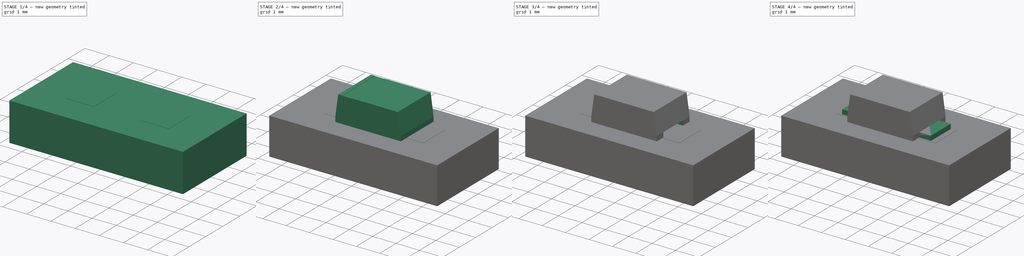
[diagram: build sequence overview — one tinted view per stage of 4, left to right]
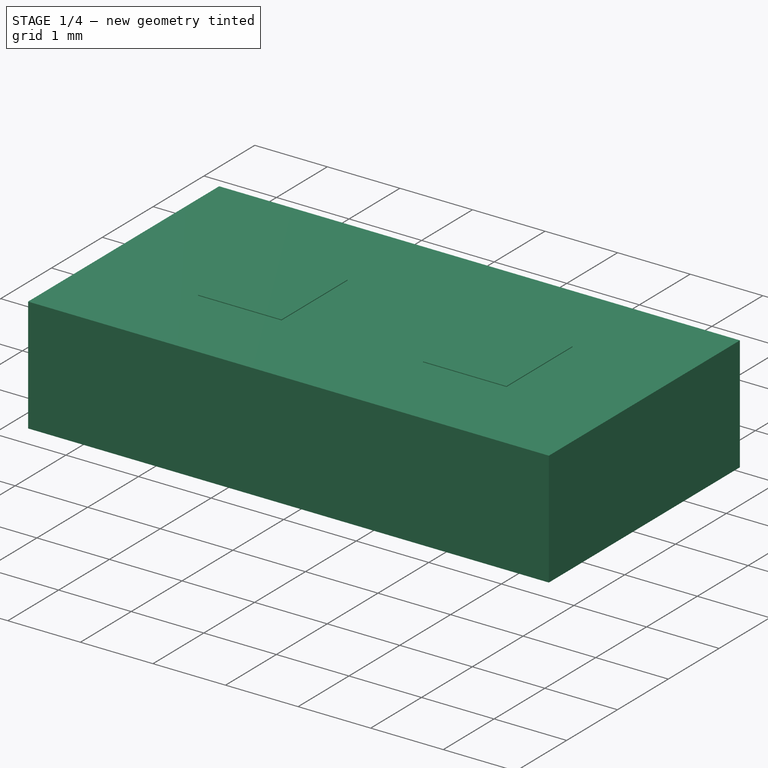
[diagram: stage 1 of 4 — iso view after this stage's code; geometry added in this stage tinted green]
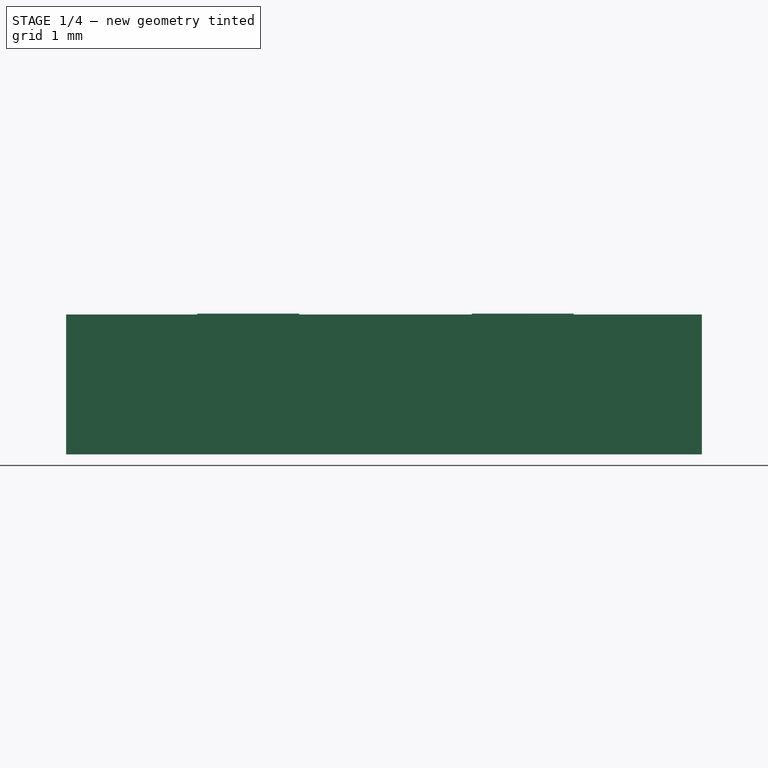
[diagram: stage 1 of 4 — front view after this stage's code; geometry added in this stage tinted green]
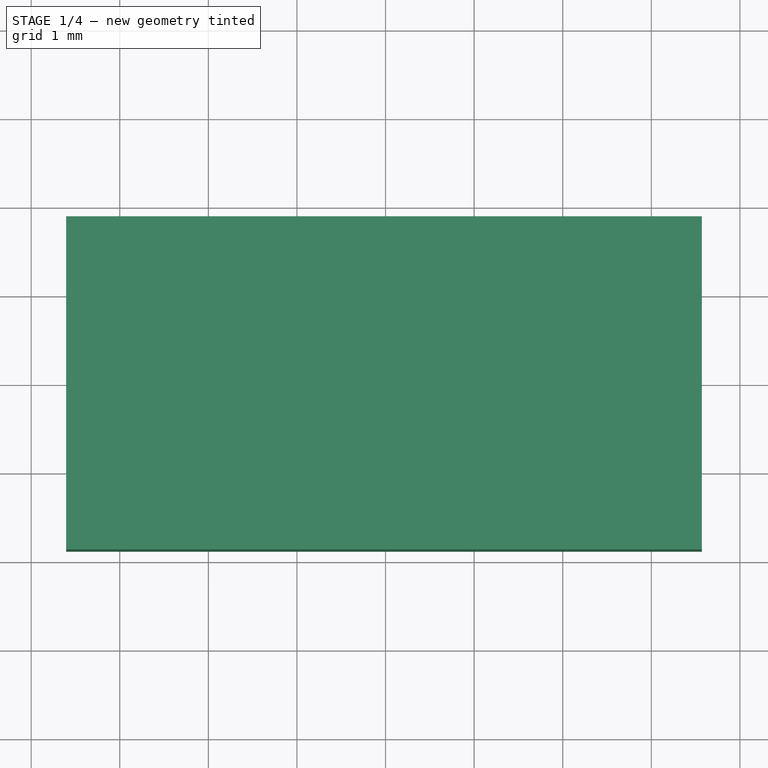
[diagram: stage 1 of 4 — top view after this stage's code; geometry added in this stage tinted green]
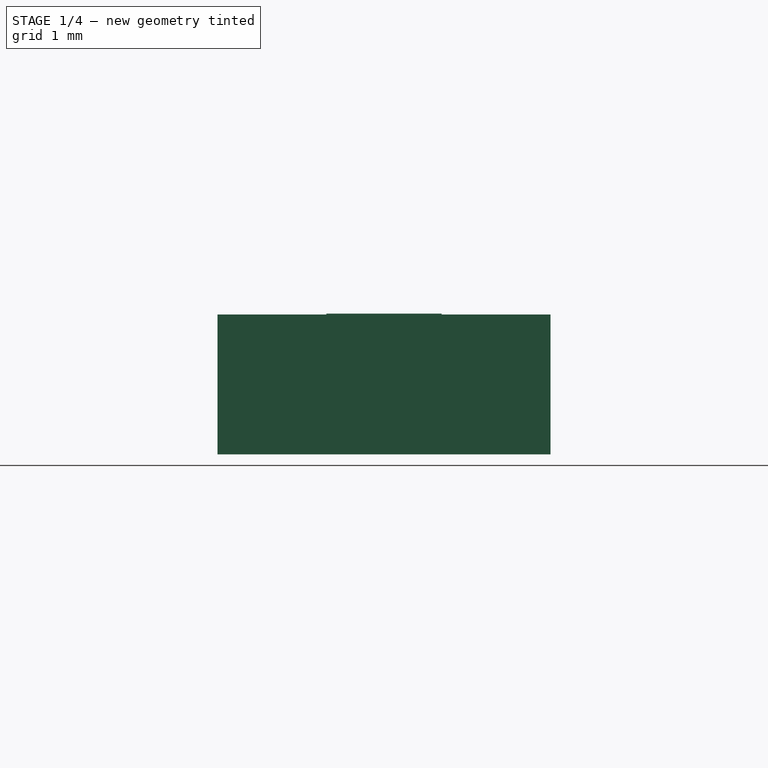
[diagram: stage 1 of 4 — right view after this stage's code; geometry added in this stage tinted green]
FCSTD DOCUMENT  (FreeCAD 0.17R13522 (Git))
Label: SMC_DSS16UTR
License: All rights reserved
LicenseURL: http://en.wikipedia.org/wiki/All_rights_reserved
objects: Sketcher::SketchObject×6, Part::FeaturePython×5, PartDesign::Pad×4, PartDesign::Body×4, PartDesign::Pocket×2, PartDesign::Plane×1, PartDesign::Mirrored×1, App::DocumentObjectGroup×1, Part::Feature×1
note: 30 computed .brp shape members not serialized (recipe doc carries the construction recipe); baked Part::Feature solids carry a one-line shape summary decoded from their .brp

FEATURE [PartDesign::Body] Body
  Group = -> [Sketch,Pad,Sketch003,Pocket,Sketch005,Pocket001,Mirrored]
  Origin = -> Origin
  Tip = -> Mirrored
FEATURE [Part::FeaturePython] FCrtYd_lines  label="FCrtYd"  # a2plus imported part (geometry in sourceFile) (typed FeaturePython)
  fixedPosition = true
FEATURE [Part::FeaturePython] FFab_lines  label="FFab"  # a2plus imported part (geometry in sourceFile) (typed FeaturePython)
  fixedPosition = true
FEATURE [Part::FeaturePython] Filk_lines  label="FrontSilk"  # a2plus imported part (geometry in sourceFile) (typed FeaturePython)
  fixedPosition = true
FEATURE [Part::FeaturePython] TopPads  # a2plus imported part (geometry in sourceFile) (typed FeaturePython)
  fixedPosition = true
FEATURE [Part::FeaturePython] newPCB  label="Pcb"  # a2plus imported part (geometry in sourceFile) (typed FeaturePython)
  fixedPosition = true
FEATURE [App::DocumentObjectGroup] D_SOD_123FL_fp
  Group = -> [FCrtYd_lines,FFab_lines,Filk_lines,TopPads,newPCB]
FEATURE [Part::Feature] Shape001  label="SMC_DSS16UTR"
  shape: bbox 3.8 x 2 x 1.1 mm, 18 faces (baked)
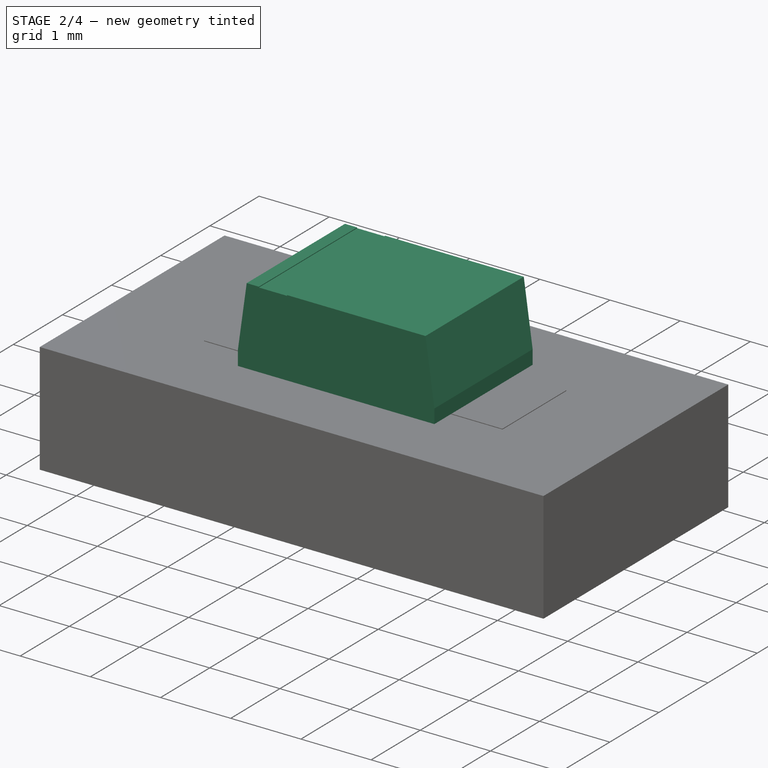
[diagram: stage 2 of 4 — iso view after this stage's code; geometry added in this stage tinted green]
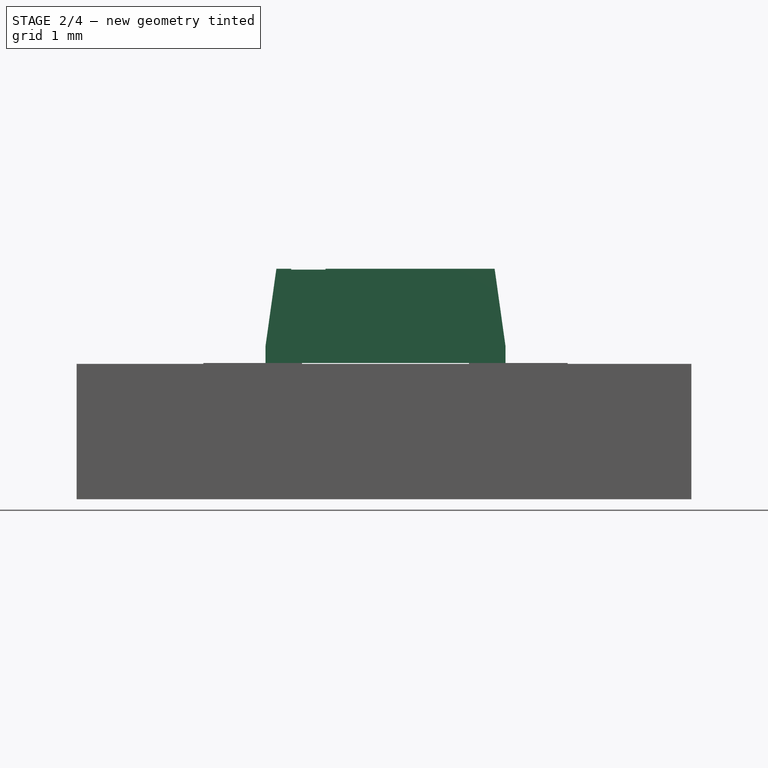
[diagram: stage 2 of 4 — front view after this stage's code; geometry added in this stage tinted green]
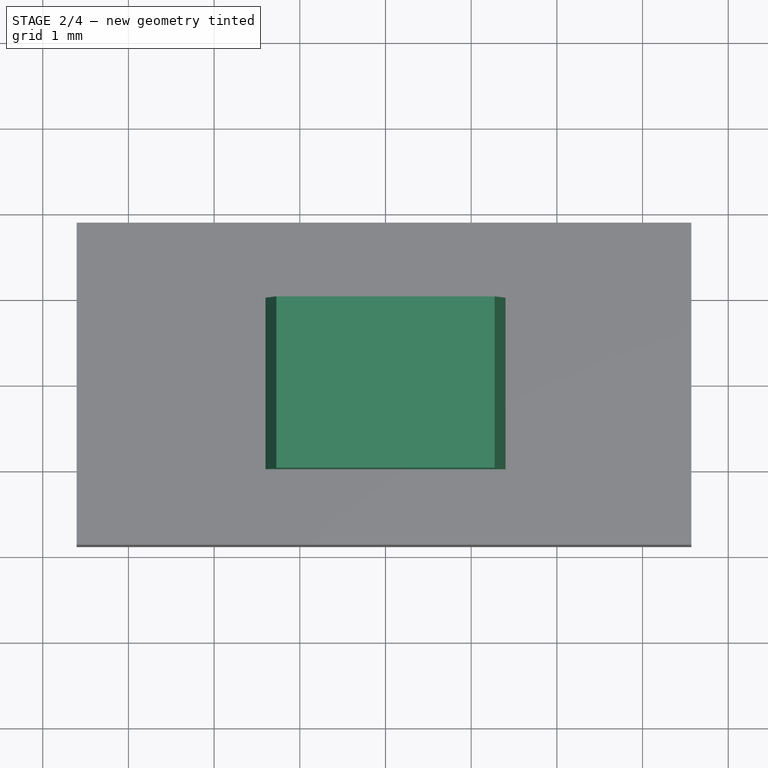
[diagram: stage 2 of 4 — top view after this stage's code; geometry added in this stage tinted green]
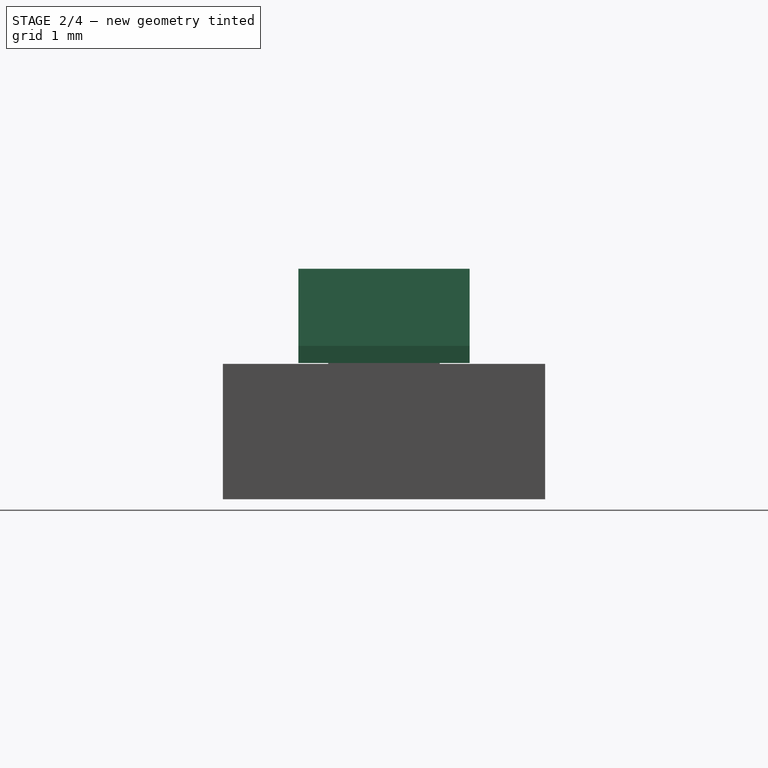
[diagram: stage 2 of 4 — right view after this stage's code; geometry added in this stage tinted green]
FEATURE [Sketcher::SketchObject] Sketch
  MapMode = 5
  Placement = pos=(0,0,0) rot=(1,0,0;1.5708rad)
  Support = -> [XZ_Plane]
  sketch-geometry (10):
    g0: LineSegment StartX=-1.4 StartY=0 StartZ=0 EndX=1.4 EndY=0 EndZ=0
    g1: LineSegment StartX=1.27351 StartY=1.1 StartZ=0 EndX=-1.27351 EndY=1.1 EndZ=0
    g2: LineSegment [constr] StartX=-1.4 StartY=0 StartZ=0 EndX=-1.4 EndY=1.1 EndZ=0
    g3: LineSegment [constr] StartX=-1.4 StartY=1.1 StartZ=0 EndX=-1.27351 EndY=1.1 EndZ=0
    g4: LineSegment [constr] StartX=1.27351 StartY=1.1 StartZ=0 EndX=1.4 EndY=1.1 EndZ=0
    g5: LineSegment [constr] StartX=1.4 StartY=1.1 StartZ=0 EndX=1.4 EndY=0 EndZ=0
    g6: LineSegment StartX=-1.27351 StartY=1.1 StartZ=0 EndX=-1.4 EndY=0.2 EndZ=0
    g7: LineSegment StartX=-1.4 StartY=0.2 StartZ=0 EndX=-1.4 EndY=0 EndZ=0
    g8: LineSegment StartX=1.27351 StartY=1.1 StartZ=0 EndX=1.4 EndY=0.2 EndZ=0
    g9: LineSegment StartX=1.4 StartY=0.2 StartZ=0 EndX=1.4 EndY=0 EndZ=0
  constraints (28):
    c: PointOnObject(g0,g-1)
    c: Horizontal(g0)
    c: Horizontal(g1)
    c: DistanceX(g0,g0) = 2.8
    c: Symmetric(g0,g0,g-2)
    c: Symmetric(g1,g1,g-2)
    c: Coincident(g2,g0)
    c: Vertical(g2)
    c: Coincident(g3,g2)
    c: Coincident(g3,g1)
    c: Horizontal(g4)
    c: Coincident(g5,g4)
    c: Coincident(g5,g0)
    c: Vertical(g5)
    c: Horizontal(g3)
    c: DistanceY(g5,g5) = 1.1
    c: Coincident(g6,g1)
    c: PointOnObject(g6,g2)
    c: Coincident(g7,g6)
    c: Coincident(g7,g0)
    c: Coincident(g8,g1)
    c: Coincident(g9,g8)
    c: Coincident(g9,g0)
    c: PointOnObject(g8,g5)
    c: DistanceY(g7,g7) = 0.2
    c: Equal(g7,g9)
    c: Angle(g5,g8) = 0.139626
    c: Coincident(g1,g4)
FEATURE [PartDesign::Pad] Pad
  Length = 2
  Length2 = 100
  Midplane = true
  Placement = pos=(0,0,0) rot=(1,0,0;1.5708rad)
  Profile = -> Sketch
  Refine = true
  Type = 0
FEATURE [PartDesign::Body] Body002  label="pin1"
  Group = -> [Sketch002,Pad002]
  Origin = -> Origin002
  Tip = -> Pad002
FEATURE [PartDesign::Plane] DatumPlane
  AttachmentOffset = pos=(0,0,1.1) rot=(0,0,1;0rad)
  MapMode = 2
  Placement = pos=(0,0,1.1) rot=(0,0,1;0rad)
  Support = -> [XY_Plane003]
FEATURE [Sketcher::SketchObject] Sketch003
  ExternalGeometry = -> [Pad]
  MapMode = 5
  Placement = pos=(0,0,1.1) rot=(0,0,1;3.14159rad)
  Support = -> [Pad]
  sketch-geometry (4):
    g0: LineSegment StartX=0.7 StartY=1 StartZ=0 EndX=1.1 EndY=1 EndZ=0
    g1: LineSegment StartX=1.1 StartY=1 StartZ=0 EndX=1.1 EndY=-1 EndZ=0
    g2: LineSegment StartX=1.1 StartY=-1 StartZ=0 EndX=0.7 EndY=-1 EndZ=0
    g3: LineSegment StartX=0.7 StartY=-1 StartZ=0 EndX=0.7 EndY=1 EndZ=0
  constraints (12):
    c: Coincident(g0,g1)
    c: Coincident(g1,g2)
    c: Coincident(g2,g3)
    c: Coincident(g3,g0)
    c: Horizontal(g0)
    c: Horizontal(g2)
    c: Vertical(g1)
    c: Vertical(g3)
    c: PointOnObject(g0,g-3)
    c: PointOnObject(g1,g-4)
    c: DistanceX(g0,g0) = 0.4
    c: DistanceX(g0,g-6) = 0.3
FEATURE [PartDesign::Pocket] Pocket
  BaseFeature = -> Pad
  Length = 0.01
  Length2 = 100
  Placement = pos=(0,0,0) rot=(1,0,0;1.5708rad)
  Profile = -> Sketch003
  Refine = true
  Type = 0
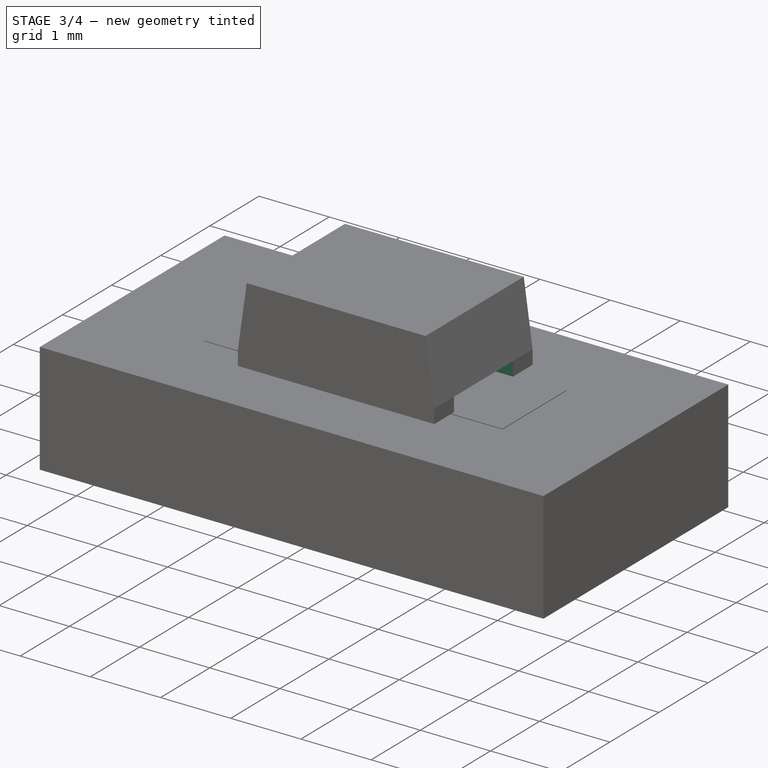
[diagram: stage 3 of 4 — iso view after this stage's code; geometry added in this stage tinted green]
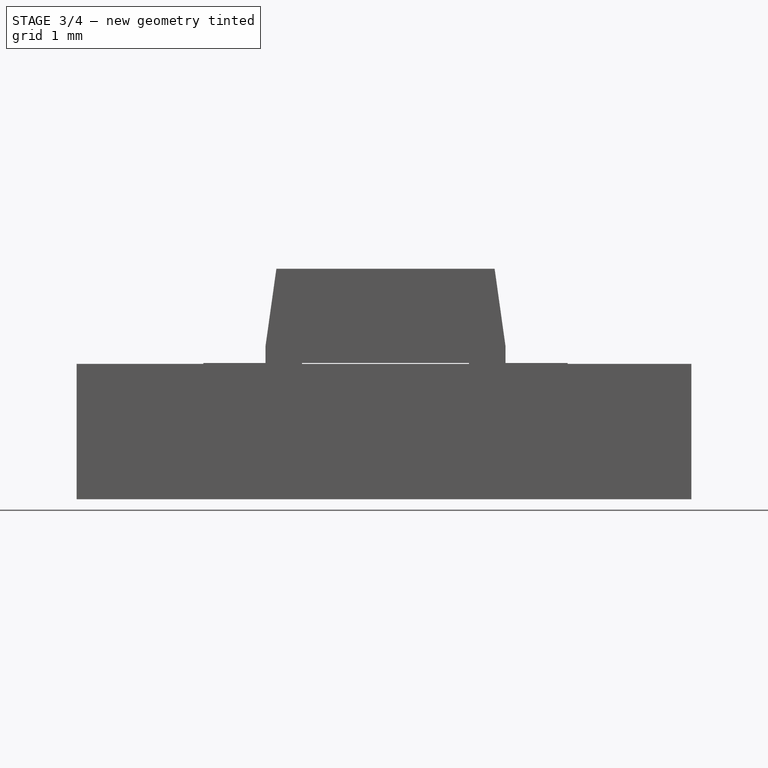
[diagram: stage 3 of 4 — front view after this stage's code; geometry added in this stage tinted green]
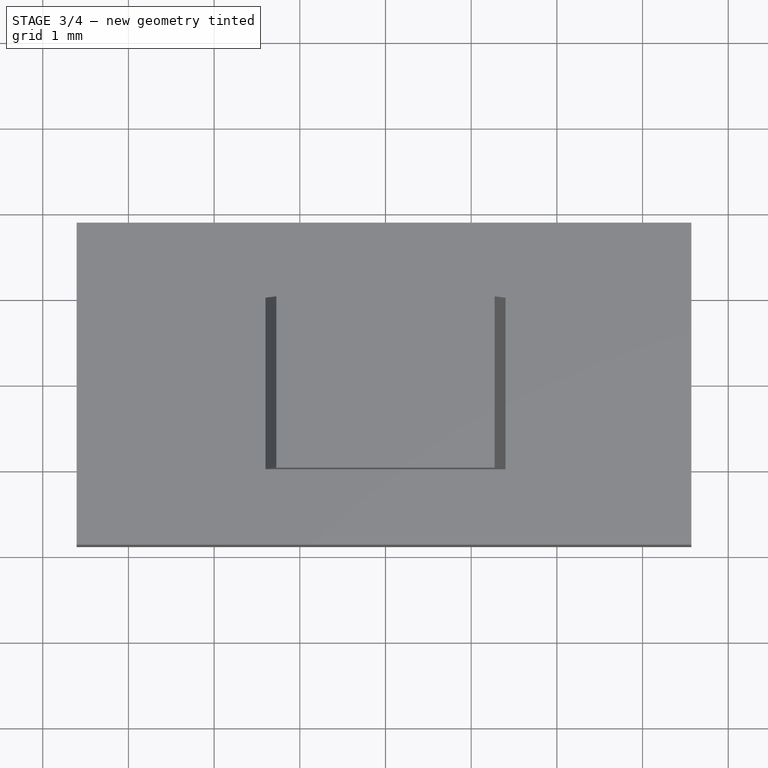
[diagram: stage 3 of 4 — top view after this stage's code; geometry added in this stage tinted green]
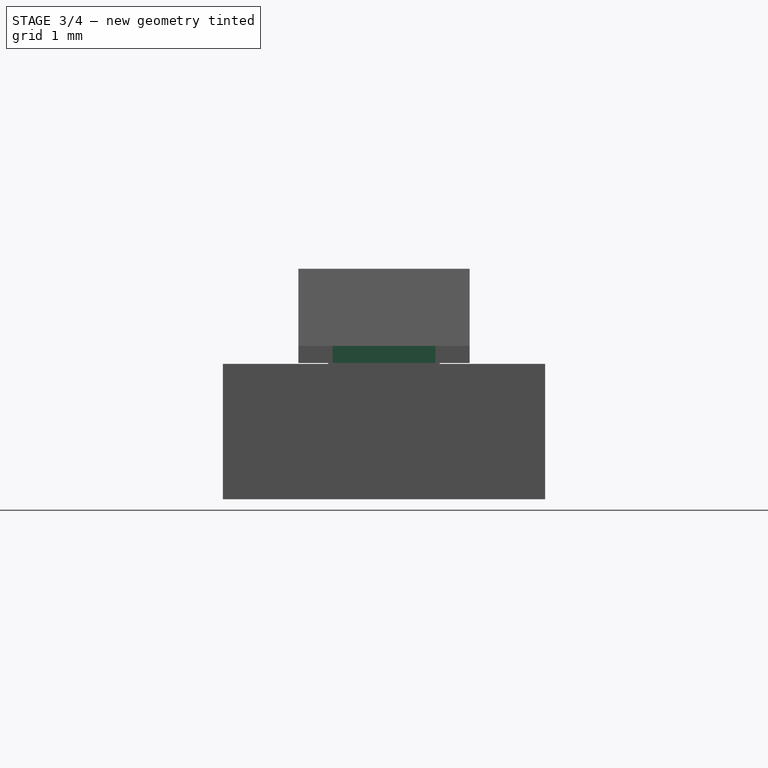
[diagram: stage 3 of 4 — right view after this stage's code; geometry added in this stage tinted green]
FEATURE [Sketcher::SketchObject] Sketch004
  MapMode = 5
  Placement = pos=(0,0,1.1) rot=(0,0,1;0rad)
  Support = -> [DatumPlane]
  expr: Constraints[13] = 2.7999999999999998 / 2
  sketch-geometry (5):
    g0: LineSegment StartX=-1.1 StartY=1 StartZ=0 EndX=-0.7 EndY=1 EndZ=0
    g1: LineSegment StartX=-0.7 StartY=1 StartZ=0 EndX=-0.7 EndY=-1 EndZ=0
    g2: LineSegment StartX=-0.7 StartY=-1 StartZ=0 EndX=-1.1 EndY=-1 EndZ=0
    g3: LineSegment StartX=-1.1 StartY=-1 StartZ=0 EndX=-1.1 EndY=1 EndZ=0
    g4: LineSegment [constr] StartX=0 StartY=0 StartZ=0 EndX=-1.4 EndY=0 EndZ=0
  constraints (15):
    c: Coincident(g0,g1)
    c: Coincident(g1,g2)
    c: Coincident(g2,g3)
    c: Coincident(g3,g0)
    c: Horizontal(g0)
    c: Horizontal(g2)
    c: Vertical(g1)
    c: Vertical(g3)
    c: Symmetric(g0,g1,g-1)
    c: DistanceY(g1,g1) = 2
    c: DistanceX(g0,g0) = 0.4
    c: Coincident(g4,g-1)
    c: PointOnObject(g4,g-1)
    c: DistanceX(g4,g4) = 1.4
    c: DistanceX(g4,g0) = 0.3
FEATURE [PartDesign::Pad] Pad003
  Length = 0.01
  Length2 = 100
  Placement = pos=(0,0,1.1) rot=(0,0,1;0rad)
  Profile = -> Sketch004
  Refine = true
  Reversed = true
  Type = 0
FEATURE [PartDesign::Body] Body003  label="polarity"
  Group = -> [DatumPlane,Sketch004,Pad003]
  Origin = -> Origin003
  Tip = -> Pad003
FEATURE [Sketcher::SketchObject] Sketch005
  MapMode = 5
  Placement = pos=(0,0,0) rot=(1,0,0;3.14159rad)
  Support = -> [Pocket]
  sketch-geometry (4):
    g0: LineSegment StartX=1.9 StartY=0.6 StartZ=0 EndX=0.95 EndY=0.6 EndZ=0
    g1: LineSegment StartX=0.95 StartY=0.6 StartZ=0 EndX=0.95 EndY=-0.6 EndZ=0
    g2: LineSegment StartX=0.95 StartY=-0.6 StartZ=0 EndX=1.9 EndY=-0.6 EndZ=0
    g3: LineSegment StartX=1.9 StartY=-0.6 StartZ=0 EndX=1.9 EndY=0.6 EndZ=0
  constraints (12):
    c: Coincident(g0,g1)
    c: Coincident(g1,g2)
    c: Coincident(g2,g3)
    c: Coincident(g3,g0)
    c: Horizontal(g0)
    c: Horizontal(g2)
    c: Vertical(g1)
    c: Vertical(g3)
    c: DistanceX(g0,g0) = 0.95
    c: DistanceY(g3,g3) = 1.2
    c: Symmetric(g0,g2,g-1)
    c: DistanceX(g-1,g0) = 1.9
FEATURE [PartDesign::Pocket] Pocket001
  BaseFeature = -> Pocket
  Length = 0.2
  Length2 = 100
  Placement = pos=(0,0,0) rot=(1,0,0;1.5708rad)
  Profile = -> Sketch005
  Refine = true
  Type = 0
FEATURE [PartDesign::Mirrored] Mirrored
  BaseFeature = -> Pocket001
  MirrorPlane = -> YZ_Plane
  Originals = -> [Pocket001]
  Placement = pos=(0,0,0) rot=(1,0,0;1.5708rad)
  Refine = true
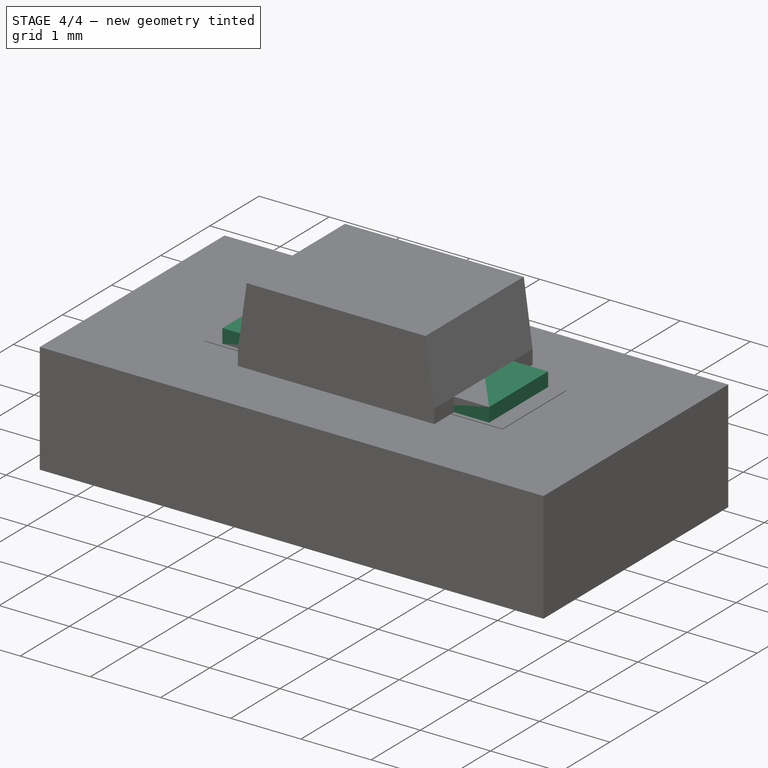
[diagram: stage 4 of 4 — iso view after this stage's code; geometry added in this stage tinted green]
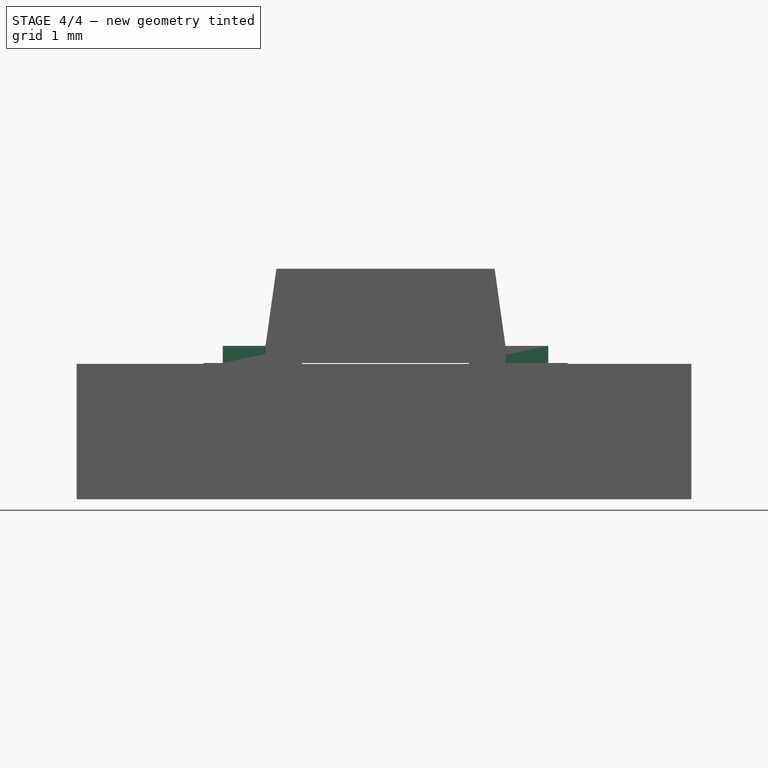
[diagram: stage 4 of 4 — front view after this stage's code; geometry added in this stage tinted green]
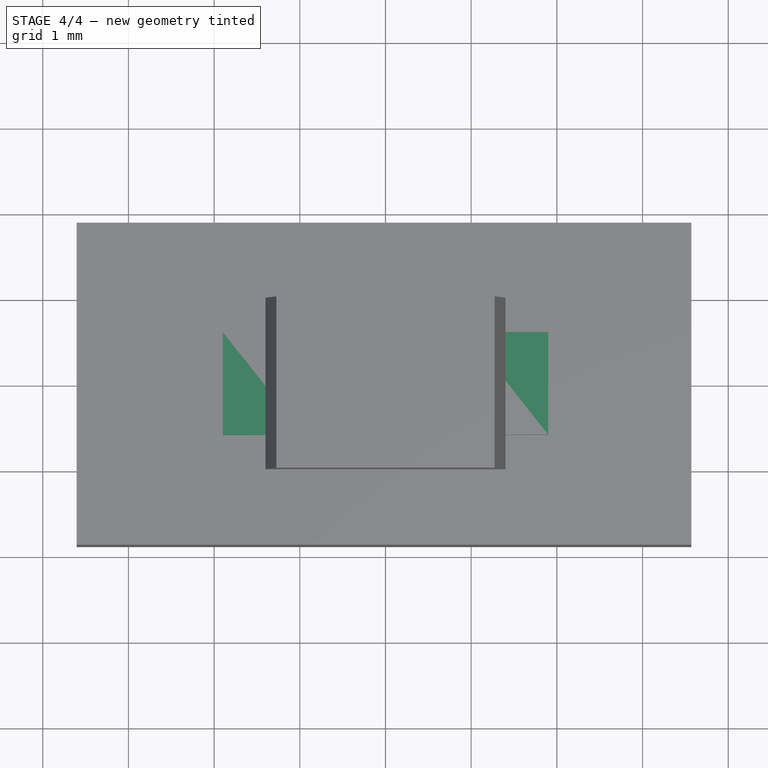
[diagram: stage 4 of 4 — top view after this stage's code; geometry added in this stage tinted green]
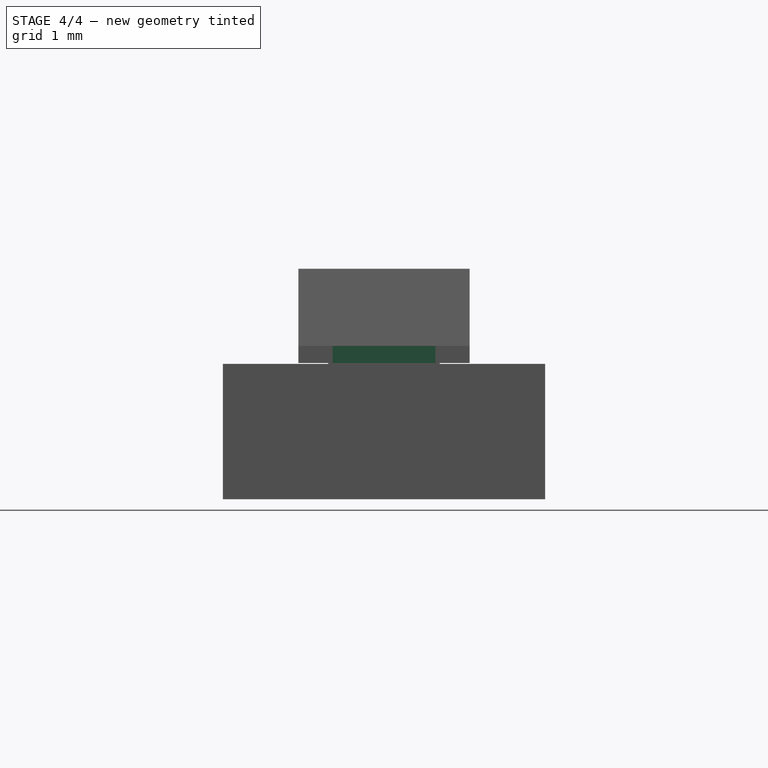
[diagram: stage 4 of 4 — right view after this stage's code; geometry added in this stage tinted green]
FEATURE [Sketcher::SketchObject] Sketch001
  MapMode = 5
  Support = -> [XY_Plane001]
  sketch-geometry (4):
    g0: LineSegment StartX=0.95 StartY=0.6 StartZ=0 EndX=1.9 EndY=0.6 EndZ=0
    g1: LineSegment StartX=1.9 StartY=0.6 StartZ=0 EndX=1.9 EndY=-0.6 EndZ=0
    g2: LineSegment StartX=1.9 StartY=-0.6 StartZ=0 EndX=0.95 EndY=-0.6 EndZ=0
    g3: LineSegment StartX=0.95 StartY=-0.6 StartZ=0 EndX=0.95 EndY=0.6 EndZ=0
  constraints (12):
    c: Coincident(g0,g1)
    c: Coincident(g1,g2)
    c: Coincident(g2,g3)
    c: Coincident(g3,g0)
    c: Horizontal(g0)
    c: Horizontal(g2)
    c: Vertical(g1)
    c: Vertical(g3)
    c: Symmetric(g0,g1,g-1)
    c: DistanceY(g1,g1) = 1.2
    c: DistanceX(g0,g0) = 0.95
    c: DistanceX(g-1,g0) = 1.9
FEATURE [PartDesign::Pad] Pad001
  Length = 0.2
  Length2 = 100
  Profile = -> Sketch001
  Refine = true
  Type = 0
FEATURE [PartDesign::Body] Body001  label="Pin2"
  Group = -> [Sketch001,Pad001]
  Origin = -> Origin001
  Tip = -> Pad001
FEATURE [Sketcher::SketchObject] Sketch002
  MapMode = 5
  Support = -> [XY_Plane002]
  sketch-geometry (4):
    g0: LineSegment StartX=-1.9 StartY=0.6 StartZ=0 EndX=-0.95 EndY=0.6 EndZ=0
    g1: LineSegment StartX=-0.95 StartY=0.6 StartZ=0 EndX=-0.95 EndY=-0.6 EndZ=0
    g2: LineSegment StartX=-0.95 StartY=-0.6 StartZ=0 EndX=-1.9 EndY=-0.6 EndZ=0
    g3: LineSegment StartX=-1.9 StartY=-0.6 StartZ=0 EndX=-1.9 EndY=0.6 EndZ=0
  constraints (12):
    c: Coincident(g0,g1)
    c: Coincident(g1,g2)
    c: Coincident(g2,g3)
    c: Coincident(g3,g0)
    c: Horizontal(g0)
    c: Horizontal(g2)
    c: Vertical(g1)
    c: Vertical(g3)
    c: Symmetric(g0,g2,g-1)
    c: DistanceY(g3,g3) = 1.2
    c: DistanceX(g0,g0) = 0.95
    c: DistanceX(g0,g-1) = 1.9
FEATURE [PartDesign::Pad] Pad002
  Length = 0.2
  Length2 = 100
  Profile = -> Sketch002
  Refine = true
  Type = 0
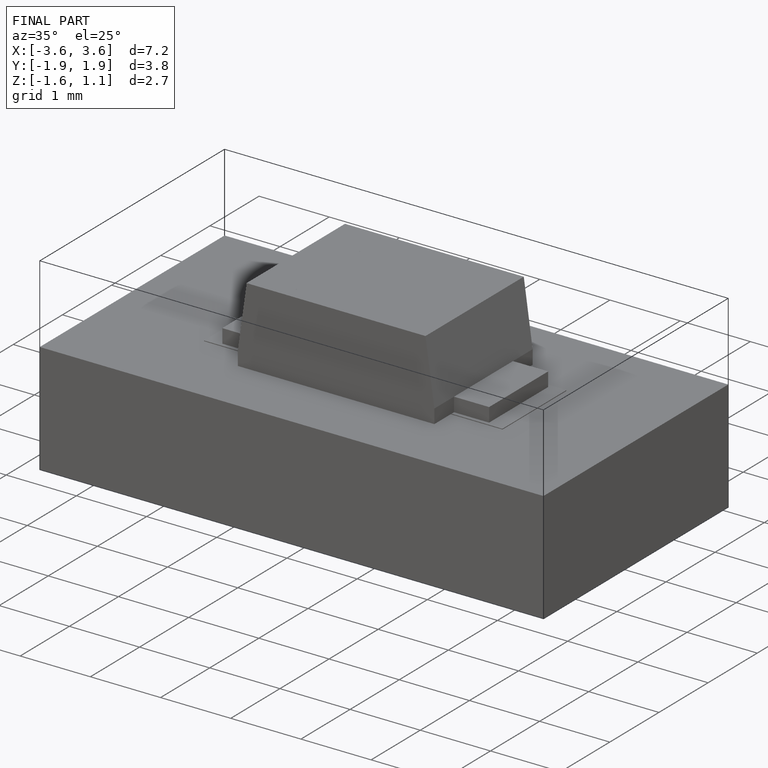
[diagram: finished part — iso view with bounding-box wireframe]
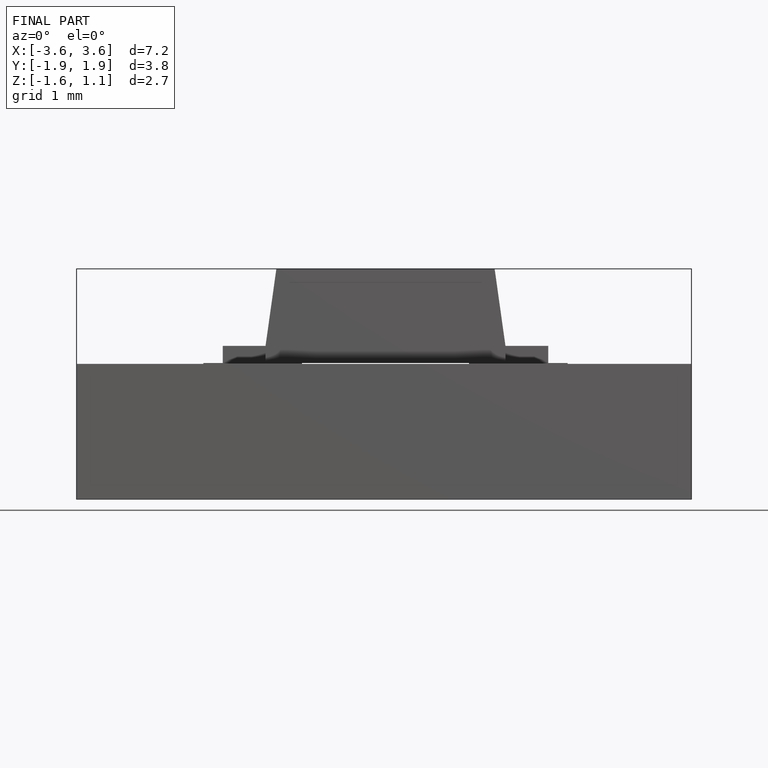
[diagram: finished part — front view with bounding-box wireframe]
